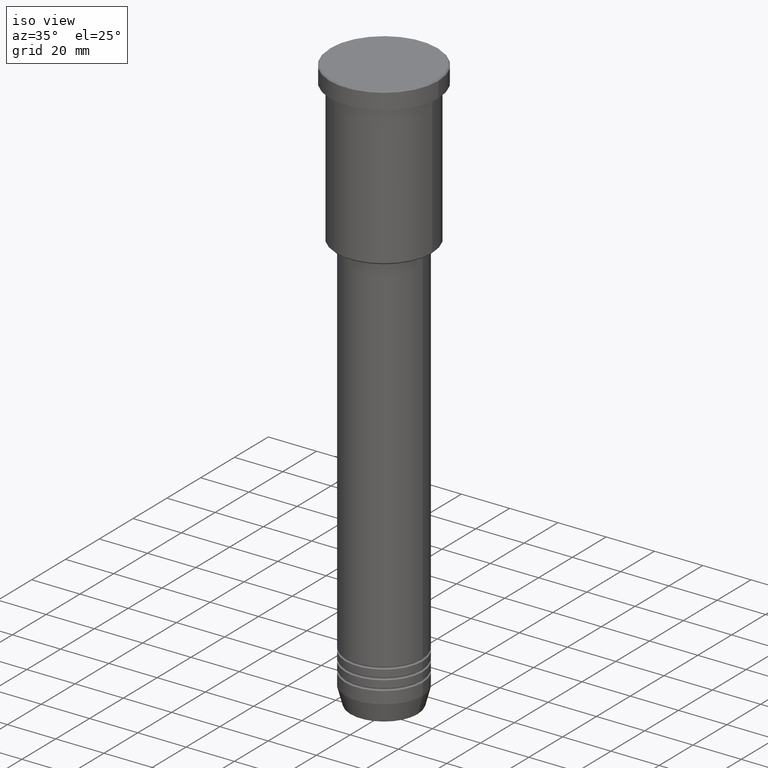
[diagram: clean part render]
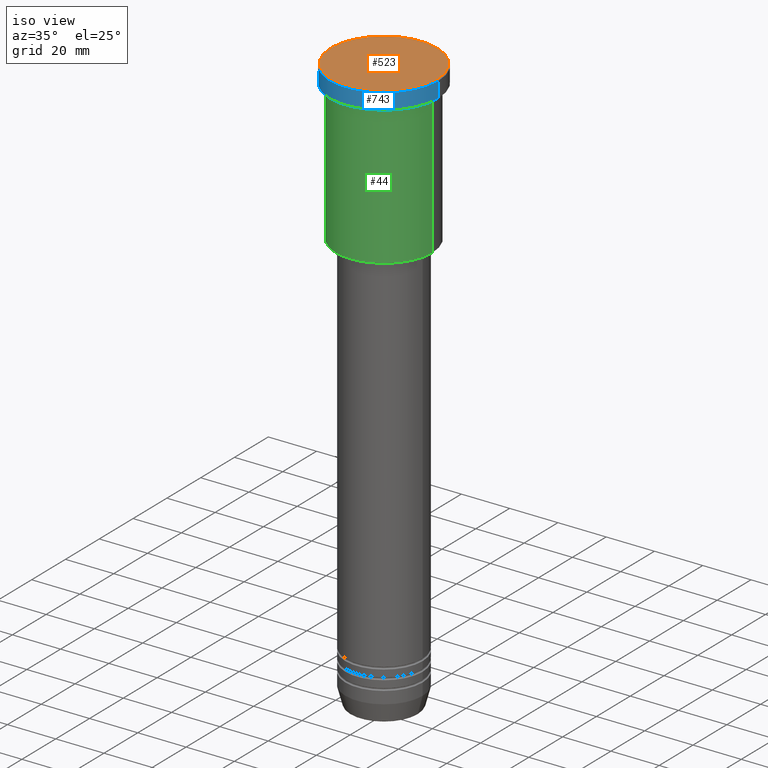
[diagram: same view with three faces highlighted in distinct colors, each labeled with its STEP entity id]
A machine part, iso view with three faces highlighted in distinct colors.
Their STEP definitions:

[orange] entity #523 — the highlighted planar face has unit normal (0, -0, 1).
#7 = AXIS2_PLACEMENT_3D ( 'NONE', #557, #640, #735 ) ;
#82 = DIRECTION ( 'NONE',  ( 1.000000000000000000, 0.000000000000000000, 0.000000000000000000 ) ) ;
#131 = AXIS2_PLACEMENT_3D ( 'NONE', #818, #549, #82 ) ;
#147 = EDGE_CURVE ( 'NONE', #176, #1022, #658, .T. ) ;
#176 = VERTEX_POINT ( 'NONE', #444 ) ;
#183 = DIRECTION ( 'NONE',  ( 1.000000000000000000, 0.000000000000000000, 0.000000000000000000 ) ) ;
#248 = CARTESIAN_POINT ( 'NONE',  ( 0.000000000000000000, 0.000000000000000000, 0.000000000000000000 ) ) ;
#388 = CARTESIAN_POINT ( 'NONE',  ( -21.99999999999996447, 0.000000000000000000, 0.000000000000000000 ) ) ;
#444 = CARTESIAN_POINT ( 'NONE',  ( 21.99999999999996447, 2.724839128102858624E-15, 0.000000000000000000 ) ) ;
#523 = ADVANCED_FACE ( 'NONE', ( #791 ), #1178, .T. ) ;
#549 = DIRECTION ( 'NONE',  ( -0.000000000000000000, -0.000000000000000000, 1.000000000000000000 ) ) ;
#554 = DIRECTION ( 'NONE',  ( -0.000000000000000000, -0.000000000000000000, 1.000000000000000000 ) ) ;
#557 = CARTESIAN_POINT ( 'NONE',  ( 0.000000000000000000, 0.000000000000000000, 0.000000000000000000 ) ) ;
#572 = ORIENTED_EDGE ( 'NONE', *, *, #147, .T. ) ;
#640 = DIRECTION ( 'NONE',  ( 0.000000000000000000, -0.000000000000000000, 1.000000000000000000 ) ) ;
#658 = CIRCLE ( 'NONE', #131, 21.99999999999996447 ) ;
#727 = CIRCLE ( 'NONE', #781, 21.99999999999996447 ) ;
#735 = DIRECTION ( 'NONE',  ( 1.000000000000000000, 0.000000000000000000, 0.000000000000000000 ) ) ;
#781 = AXIS2_PLACEMENT_3D ( 'NONE', #248, #554, #183 ) ;
#788 = EDGE_CURVE ( 'NONE', #1022, #176, #727, .T. ) ;
#791 = FACE_OUTER_BOUND ( 'NONE', #903, .T. ) ;
#818 = CARTESIAN_POINT ( 'NONE',  ( 0.000000000000000000, 0.000000000000000000, 0.000000000000000000 ) ) ;
#903 = EDGE_LOOP ( 'NONE', ( #1010, #572 ) ) ;
#1010 = ORIENTED_EDGE ( 'NONE', *, *, #788, .T. ) ;
#1022 = VERTEX_POINT ( 'NONE', #388 ) ;
#1178 = PLANE ( 'NONE',  #7 ) ;

[blue] entity #743 — the highlighted cylindrical surface (partial cylindrical patch) has radius 22.5 mm, axis along (-0, -0, 1).
#11 = CARTESIAN_POINT ( 'NONE',  ( 22.50000000000000000, 0.000000000000000000, -6.999999999999995559 ) ) ;
#26 = DIRECTION ( 'NONE',  ( 1.000000000000000000, 0.000000000000000000, 0.000000000000000000 ) ) ;
#56 = CIRCLE ( 'NONE', #922, 22.50000000000000000 ) ;
#60 = EDGE_CURVE ( 'NONE', #1128, #232, #955, .T. ) ;
#168 = EDGE_CURVE ( 'NONE', #947, #828, #56, .T. ) ;
#197 = DIRECTION ( 'NONE',  ( -0.000000000000000000, -0.000000000000000000, 1.000000000000000000 ) ) ;
#201 = FACE_OUTER_BOUND ( 'NONE', #303, .T. ) ;
#208 = AXIS2_PLACEMENT_3D ( 'NONE', #228, #951, #706 ) ;
#220 = CARTESIAN_POINT ( 'NONE',  ( 22.50000000000000000, 0.000000000000000000, 0.000000000000000000 ) ) ;
#228 = CARTESIAN_POINT ( 'NONE',  ( 0.000000000000000000, 0.000000000000000000, -6.999999999999995559 ) ) ;
#232 = VERTEX_POINT ( 'NONE', #11 ) ;
#237 = DIRECTION ( 'NONE',  ( -0.000000000000000000, -0.000000000000000000, 1.000000000000000000 ) ) ;
#282 = CARTESIAN_POINT ( 'NONE',  ( 22.50000000000000000, 0.000000000000000000, -0.5000000000000490719 ) ) ;
#283 = CARTESIAN_POINT ( 'NONE',  ( 0.000000000000000000, 0.000000000000000000, -0.5000000000000490719 ) ) ;
#303 = EDGE_LOOP ( 'NONE', ( #1011, #1156, #490, #394 ) ) ;
#311 = CARTESIAN_POINT ( 'NONE',  ( -22.50000000000000000, 2.755455298081544778E-15, -6.999999999999995559 ) ) ;
#324 = DIRECTION ( 'NONE',  ( -0.000000000000000000, -0.000000000000000000, 1.000000000000000000 ) ) ;
#346 = LINE ( 'NONE', #220, #937 ) ;
#349 = CARTESIAN_POINT ( 'NONE',  ( -22.50000000000000000, 2.755455298081544778E-15, 0.000000000000000000 ) ) ;
#394 = ORIENTED_EDGE ( 'NONE', *, *, #168, .T. ) ;
#403 = DIRECTION ( 'NONE',  ( 0.000000000000000000, 0.000000000000000000, -1.000000000000000000 ) ) ;
#414 = EDGE_CURVE ( 'NONE', #232, #947, #346, .T. ) ;
#483 = DIRECTION ( 'NONE',  ( 1.000000000000000000, 0.000000000000000000, 0.000000000000000000 ) ) ;
#490 = ORIENTED_EDGE ( 'NONE', *, *, #414, .T. ) ;
#496 = CYLINDRICAL_SURFACE ( 'NONE', #878, 22.50000000000000000 ) ;
#639 = EDGE_CURVE ( 'NONE', #1128, #828, #1145, .T. ) ;
#706 = DIRECTION ( 'NONE',  ( 1.000000000000000000, 0.000000000000000000, 0.000000000000000000 ) ) ;
#743 = ADVANCED_FACE ( 'NONE', ( #201 ), #496, .T. ) ;
#828 = VERTEX_POINT ( 'NONE', #1168 ) ;
#848 = CARTESIAN_POINT ( 'NONE',  ( 0.000000000000000000, 0.000000000000000000, 0.000000000000000000 ) ) ;
#878 = AXIS2_PLACEMENT_3D ( 'NONE', #848, #197, #483 ) ;
#922 = AXIS2_PLACEMENT_3D ( 'NONE', #283, #403, #26 ) ;
#935 = VECTOR ( 'NONE', #324, 1000.000000000000000 ) ;
#937 = VECTOR ( 'NONE', #237, 1000.000000000000000 ) ;
#947 = VERTEX_POINT ( 'NONE', #282 ) ;
#951 = DIRECTION ( 'NONE',  ( -0.000000000000000000, -0.000000000000000000, 1.000000000000000000 ) ) ;
#955 = CIRCLE ( 'NONE', #208, 22.50000000000000000 ) ;
#1011 = ORIENTED_EDGE ( 'NONE', *, *, #639, .F. ) ;
#1128 = VERTEX_POINT ( 'NONE', #311 ) ;
#1145 = LINE ( 'NONE', #349, #935 ) ;
#1156 = ORIENTED_EDGE ( 'NONE', *, *, #60, .T. ) ;
#1168 = CARTESIAN_POINT ( 'NONE',  ( -22.50000000000000000, 2.755455298081544778E-15, -0.5000000000000490719 ) ) ;

[green] entity #44 — the highlighted cylindrical surface (partial cylindrical patch) has radius 20 mm, axis along (-0, -0, 1).
#2 = CARTESIAN_POINT ( 'NONE',  ( 20.00000000000000355, 0.000000000000000000, 0.000000000000000000 ) ) ;
#44 = ADVANCED_FACE ( 'NONE', ( #319 ), #701, .T. ) ;
#111 = CIRCLE ( 'NONE', #148, 20.00000000000000355 ) ;
#113 = DIRECTION ( 'NONE',  ( -1.000000000000000000, 0.000000000000000000, 0.000000000000000000 ) ) ;
#148 = AXIS2_PLACEMENT_3D ( 'NONE', #218, #992, #113 ) ;
#177 = DIRECTION ( 'NONE',  ( 1.000000000000000000, 0.000000000000000000, 0.000000000000000000 ) ) ;
#218 = CARTESIAN_POINT ( 'NONE',  ( 0.000000000000000000, 0.000000000000000000, -65.50000000000002842 ) ) ;
#226 = EDGE_CURVE ( 'NONE', #1129, #431, #820, .T. ) ;
#230 = DIRECTION ( 'NONE',  ( -0.000000000000000000, -0.000000000000000000, 1.000000000000000000 ) ) ;
#242 = CARTESIAN_POINT ( 'NONE',  ( 0.000000000000000000, 0.000000000000000000, 0.000000000000000000 ) ) ;
#285 = ORIENTED_EDGE ( 'NONE', *, *, #776, .F. ) ;
#309 = VERTEX_POINT ( 'NONE', #310 ) ;
#310 = CARTESIAN_POINT ( 'NONE',  ( -20.00000000000000355, 2.449293598294706907E-15, -65.50000000000002842 ) ) ;
#315 = EDGE_CURVE ( 'NONE', #309, #977, #790, .T. ) ;
#319 = FACE_OUTER_BOUND ( 'NONE', #365, .T. ) ;
#320 = CARTESIAN_POINT ( 'NONE',  ( 20.00000000000000000, 0.000000000000000000, -7.999999999999994671 ) ) ;
#325 = DIRECTION ( 'NONE',  ( -0.000000000000000000, -0.000000000000000000, 1.000000000000000000 ) ) ;
#350 = DIRECTION ( 'NONE',  ( -0.000000000000000000, -0.000000000000000000, 1.000000000000000000 ) ) ;
#365 = EDGE_LOOP ( 'NONE', ( #916, #590, #786, #285 ) ) ;
#412 = CARTESIAN_POINT ( 'NONE',  ( 20.00000000000000355, 0.000000000000000000, -65.50000000000002842 ) ) ;
#431 = VERTEX_POINT ( 'NONE', #320 ) ;
#460 = AXIS2_PLACEMENT_3D ( 'NONE', #528, #350, #177 ) ;
#528 = CARTESIAN_POINT ( 'NONE',  ( 0.000000000000000000, 0.000000000000000000, -7.999999999999994671 ) ) ;
#552 = EDGE_CURVE ( 'NONE', #309, #1129, #111, .T. ) ;
#590 = ORIENTED_EDGE ( 'NONE', *, *, #552, .T. ) ;
#603 = VECTOR ( 'NONE', #652, 1000.000000000000000 ) ;
#618 = VECTOR ( 'NONE', #230, 1000.000000000000000 ) ;
#652 = DIRECTION ( 'NONE',  ( -0.000000000000000000, -0.000000000000000000, 1.000000000000000000 ) ) ;
#701 = CYLINDRICAL_SURFACE ( 'NONE', #784, 20.00000000000000355 ) ;
#776 = EDGE_CURVE ( 'NONE', #977, #431, #1176, .T. ) ;
#784 = AXIS2_PLACEMENT_3D ( 'NONE', #242, #325, #874 ) ;
#786 = ORIENTED_EDGE ( 'NONE', *, *, #226, .T. ) ;
#790 = LINE ( 'NONE', #1051, #618 ) ;
#820 = LINE ( 'NONE', #2, #603 ) ;
#843 = CARTESIAN_POINT ( 'NONE',  ( -20.00000000000000000, 2.449293598294706513E-15, -7.999999999999994671 ) ) ;
#874 = DIRECTION ( 'NONE',  ( 1.000000000000000000, 0.000000000000000000, 0.000000000000000000 ) ) ;
#916 = ORIENTED_EDGE ( 'NONE', *, *, #315, .F. ) ;
#977 = VERTEX_POINT ( 'NONE', #843 ) ;
#992 = DIRECTION ( 'NONE',  ( -0.000000000000000000, -0.000000000000000000, 1.000000000000000000 ) ) ;
#1051 = CARTESIAN_POINT ( 'NONE',  ( -20.00000000000000355, 2.449293598294706907E-15, 0.000000000000000000 ) ) ;
#1129 = VERTEX_POINT ( 'NONE', #412 ) ;
#1176 = CIRCLE ( 'NONE', #460, 20.00000000000000000 ) ;